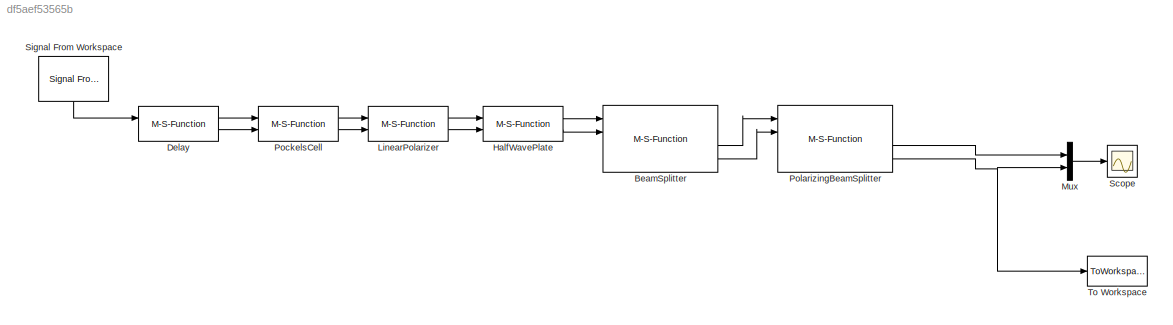
MODEL slx_df5aef53565b
KIND model
CONFIG InitFcn = clearAll;\n\n\np = PulseArray();\np.addPulse(Pulse([]));\n\n% Vector of input pulse timings\nnum_pulses_start = 100;\ntimings = 0:13e-9:(num_pulses_start-1)*13e-9;\n\n% Pulse sequence creation\ninputsignal = zeros(length(timings)+100,1);\n\nfor i = 1:length(timings)\n    pulse1 = Pulse([timings(i)]);\n    %pulse2 = Pulse([timings(i)]);\n    pA = PulseArray();\n    pA.addPulse(pulse1);\n    %pA.addPulse(pulse2);\n   ...<+33ch>
BLOCK [M-S-Function] BeamSplitter
  FunctionName = fourwaycomponent_s
  Parameters = 'BeamSplitter',Params
  Ports = [4, 4]
BLOCK [M-S-Function] Delay
  FunctionName = component_s
  Parameters = 'Delay',Params
  Ports = [2, 2]
BLOCK [M-S-Function] HalfWavePlate
  FunctionName = component_s
  Parameters = 'HalfWavePlate',Params
  Ports = [2, 2]
BLOCK [M-S-Function] LinearPolarizer
  FunctionName = component_s
  Parameters = 'LinearPolarizer',Params
  Ports = [2, 2]
BLOCK [Mux] Mux
  DisplayOption = bar
  Inputs = 2
  Ports = [2, 1]
BLOCK [M-S-Function] PockelsCell
  FunctionName = component_s
  Parameters = 'PockelsCell',Params
  Ports = [2, 2]
BLOCK [M-S-Function] PolarizingBeamSplitter
  FunctionName = fourwaycomponent_s
  Parameters = 'PolarizingBeamSplitter',Params
  Ports = [4, 4]
BLOCK [Scope] Scope
  Floating = off
  NumInputPorts = 1
  Ports = [1]
  ShowLegends = off
BLOCK [Reference] Signal From Workspace  REF=dspsrcs4/Signal From
Workspace
  OutputAfterFinalValue = Setting to zero
  Ports = [0, 1]
  SourceBlock = dspsrcs4/Signal From\nWorkspace
  SourceType = Signal From Workspace
  Ts = 1
  X = inputsignal
  ignoreOrWarnInputAndFrameLengths = off
  nsamps = 1
BLOCK [ToWorkspace] To Workspace
  FixptAsFi = on
  MaxDataPoints = inf
  Ports = [1]
  SampleTime = -1
  Save2DSignal = 3-D array (concatenate along third dimension)
  SaveFormat = Timeseries
  VariableName = simout
LINE BeamSplitter:3 -> PolarizingBeamSplitter:1
LINE BeamSplitter:4 -> PolarizingBeamSplitter:2
LINE Delay:1 -> PockelsCell:1
LINE Delay:2 -> PockelsCell:2
LINE HalfWavePlate:1 -> BeamSplitter:1
LINE HalfWavePlate:2 -> BeamSplitter:2
LINE LinearPolarizer:1 -> HalfWavePlate:1
LINE LinearPolarizer:2 -> HalfWavePlate:2
LINE Mux:1 -> Scope:1
LINE PockelsCell:1 -> LinearPolarizer:1
LINE PockelsCell:2 -> LinearPolarizer:2
LINE PolarizingBeamSplitter:3 -> Mux:1
NET PolarizingBeamSplitter:4 -> Mux:2, To Workspace:1
LINE Signal From Workspace:1 -> Delay:1
note: NET lines group one-source signal fan-out (src -> all destinations, sorted); 1:1 wires keep LINE
